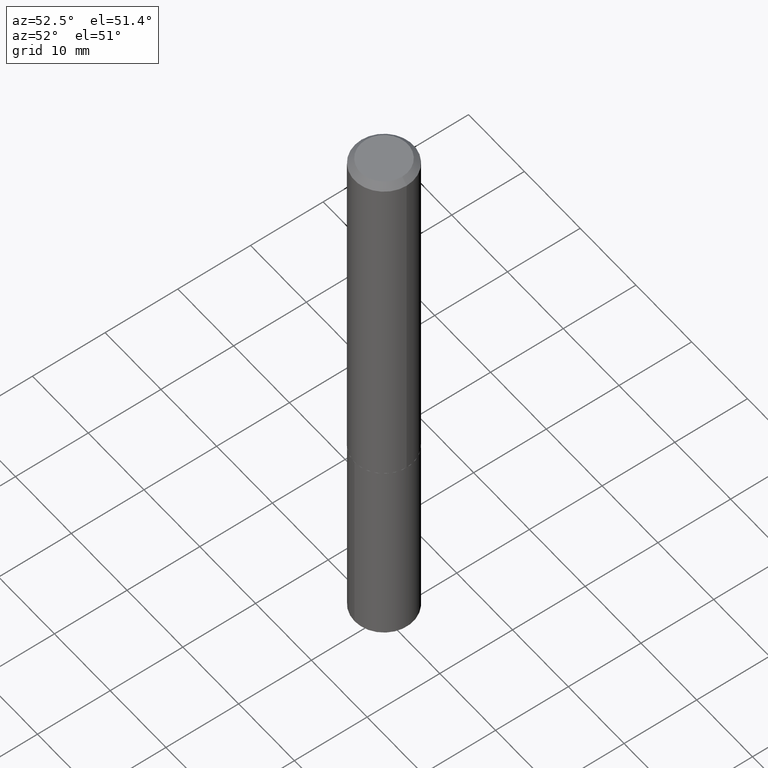
[diagram: clean part render]
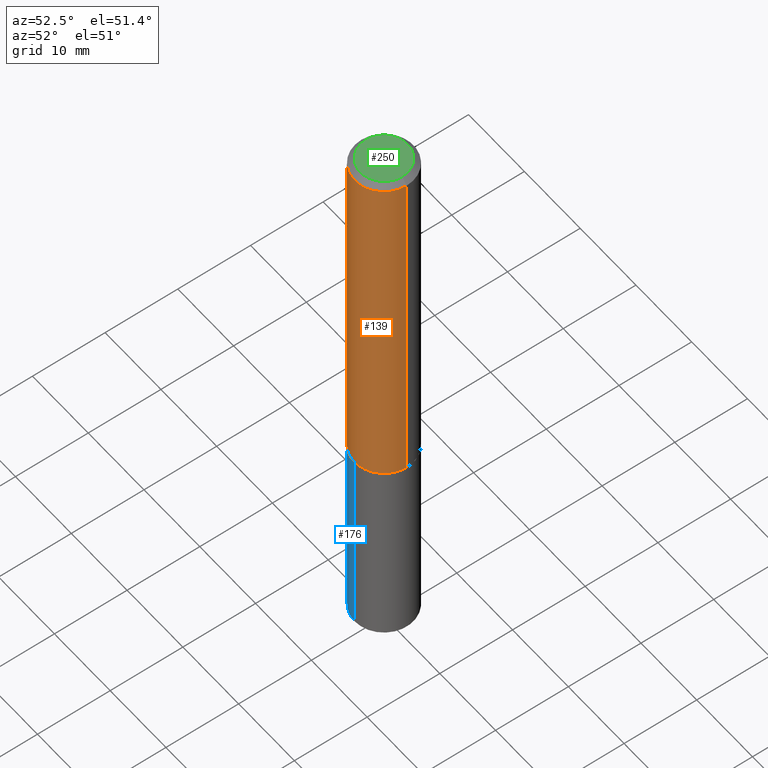
[diagram: same view with three faces highlighted in distinct colors, each labeled with its STEP entity id]
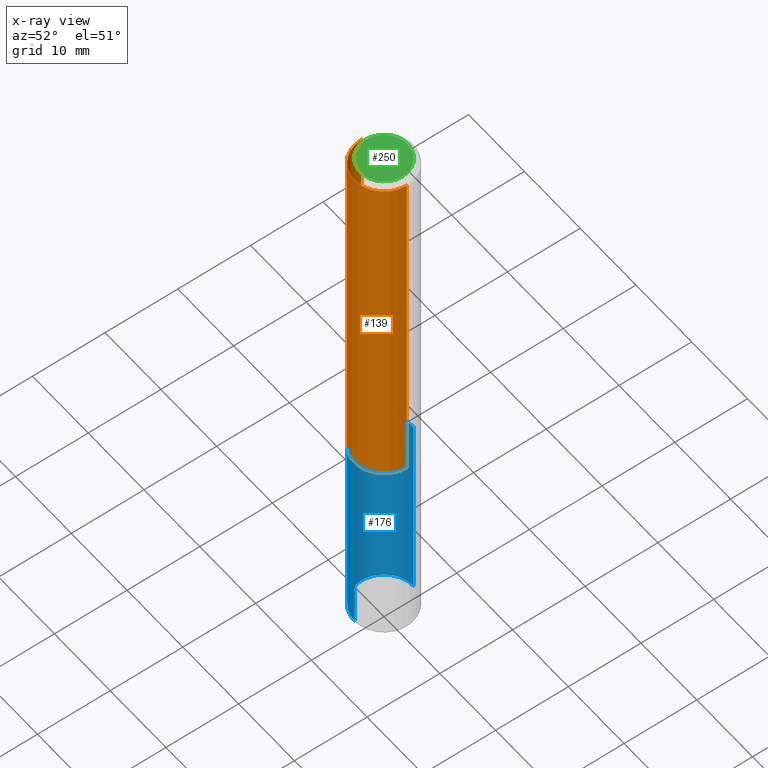
[diagram: x-ray of the same camera — body ghosted, the three highlighted faces saturated]
A machine part, auxiliary view with three faces highlighted in distinct colors.
The next image is the same camera in x-ray (body ghosted, the three faces saturated) — at least one of them is partly hidden behind the body in this view.
Their STEP definitions:

[orange] entity #139 — the highlighted cylindrical surface (partial cylindrical patch) has radius 4.05 mm, axis along (-0, 0, 1).
#24 = CARTESIAN_POINT ( 'NONE',  ( 4.822219938916470979E-29, -6.884852052064798720E-15, -1.971899999999999986 ) ) ;
#25 = EDGE_CURVE ( 'NONE', #80, #200, #130, .T. ) ;
#38 = CARTESIAN_POINT ( 'NONE',  ( -0.1594500000000002582, -5.751891659895316745E-15, -1.971899999999999986 ) ) ;
#51 = AXIS2_PLACEMENT_3D ( 'NONE', #380, #164, #261 ) ;
#52 = VERTEX_POINT ( 'NONE', #38 ) ;
#58 = CARTESIAN_POINT ( 'NONE',  ( 0.1594500000000001194, -1.113433398957076194E-15, 7.775063869006624280E-30 ) ) ;
#77 = ORIENTED_EDGE ( 'NONE', *, *, #367, .F. ) ;
#80 = VERTEX_POINT ( 'NONE', #368 ) ;
#83 = CIRCLE ( 'NONE', #51, 0.1594500000000000361 ) ;
#93 = CARTESIAN_POINT ( 'NONE',  ( 0.000000000000000000, 0.000000000000000000, 0.000000000000000000 ) ) ;
#114 = ORIENTED_EDGE ( 'NONE', *, *, #25, .T. ) ;
#130 = LINE ( 'NONE', #58, #327 ) ;
#137 = CARTESIAN_POINT ( 'NONE',  ( -0.1594500000000000361, -2.364020029782342724E-15, -0.03125000000000021511 ) ) ;
#139 = ADVANCED_FACE ( 'NONE', ( #184 ), #366, .T. ) ;
#142 = CARTESIAN_POINT ( 'NONE',  ( 0.1594500000000000361, -1.222542190795924506E-15, -0.03125000000000021511 ) ) ;
#149 = EDGE_CURVE ( 'NONE', #52, #80, #286, .T. ) ;
#164 = DIRECTION ( 'NONE',  ( -2.445468806185136597E-29, 3.491481338843145583E-15, 1.000000000000000000 ) ) ;
#172 = LINE ( 'NONE', #329, #230 ) ;
#178 = EDGE_LOOP ( 'NONE', ( #77, #205, #114, #301 ) ) ;
#184 = FACE_OUTER_BOUND ( 'NONE', #178, .T. ) ;
#189 = DIRECTION ( 'NONE',  ( 1.000000000000000000, -6.982962677686267499E-15, 0.000000000000000000 ) ) ;
#197 = DIRECTION ( 'NONE',  ( -2.445468806185136597E-29, 3.491481338843145583E-15, 1.000000000000000000 ) ) ;
#200 = VERTEX_POINT ( 'NONE', #142 ) ;
#205 = ORIENTED_EDGE ( 'NONE', *, *, #149, .T. ) ;
#230 = VECTOR ( 'NONE', #365, 39.37007874015748143 ) ;
#233 = EDGE_CURVE ( 'NONE', #328, #200, #83, .T. ) ;
#240 = AXIS2_PLACEMENT_3D ( 'NONE', #93, #310, #307 ) ;
#261 = DIRECTION ( 'NONE',  ( 1.000000000000000000, -6.982962677686265922E-15, 0.000000000000000000 ) ) ;
#286 = CIRCLE ( 'NONE', #372, 0.1594500000000002582 ) ;
#301 = ORIENTED_EDGE ( 'NONE', *, *, #233, .F. ) ;
#307 = DIRECTION ( 'NONE',  ( 1.000000000000000000, -6.982962677686267499E-15, 4.876176775795935232E-29 ) ) ;
#310 = DIRECTION ( 'NONE',  ( -2.445468806185136597E-29, 3.491481338843145583E-15, 1.000000000000000000 ) ) ;
#327 = VECTOR ( 'NONE', #343, 39.37007874015748143 ) ;
#328 = VERTEX_POINT ( 'NONE', #137 ) ;
#329 = CARTESIAN_POINT ( 'NONE',  ( -0.1594500000000001194, 1.132960392169480595E-15, -7.843242001411453542E-30 ) ) ;
#343 = DIRECTION ( 'NONE',  ( -2.445468806185136877E-29, 3.491481338843145188E-15, 1.000000000000000000 ) ) ;
#365 = DIRECTION ( 'NONE',  ( -2.445468806185136877E-29, 3.491481338843145188E-15, 1.000000000000000000 ) ) ;
#366 = CYLINDRICAL_SURFACE ( 'NONE', #240, 0.1594500000000001194 ) ;
#367 = EDGE_CURVE ( 'NONE', #52, #328, #172, .T. ) ;
#368 = CARTESIAN_POINT ( 'NONE',  ( 0.1594500000000002582, -7.998285451021876295E-15, -1.971899999999999986 ) ) ;
#372 = AXIS2_PLACEMENT_3D ( 'NONE', #24, #197, #189 ) ;
#380 = CARTESIAN_POINT ( 'NONE',  ( 7.642090019328603538E-31, -1.091087918388490390E-16, -0.03125000000000021511 ) ) ;

[blue] entity #176 — the highlighted cylindrical surface (partial cylindrical patch) has radius 4.05 mm, axis along (-0, 0, 1).
#6 = DIRECTION ( 'NONE',  ( -2.445414738655623976E-29, 3.491558766622740629E-15, 1.000000000000000000 ) ) ;
#13 = DIRECTION ( 'NONE',  ( -2.445414738655623695E-29, 3.491558766622740629E-15, 1.000000000000000000 ) ) ;
#22 = DIRECTION ( 'NONE',  ( -6.982962677686265133E-15, -1.000000000000000000, 3.426588891394496771E-15 ) ) ;
#30 = ORIENTED_EDGE ( 'NONE', *, *, #218, .T. ) ;
#48 = CYLINDRICAL_SURFACE ( 'NONE', #98, 0.1594500000000000361 ) ;
#54 = ORIENTED_EDGE ( 'NONE', *, *, #100, .T. ) ;
#67 = EDGE_CURVE ( 'NONE', #148, #117, #215, .T. ) ;
#74 = AXIS2_PLACEMENT_3D ( 'NONE', #242, #132, #96 ) ;
#75 = DIRECTION ( 'NONE',  ( -2.445414738655623695E-29, 3.491558766622740629E-15, 1.000000000000000000 ) ) ;
#81 = CARTESIAN_POINT ( 'NONE',  ( 4.823442673319563780E-29, -6.886597792734220224E-15, -1.972399999999999931 ) ) ;
#96 = DIRECTION ( 'NONE',  ( -6.982962677686265133E-15, -1.000000000000000000, 3.426588891394496771E-15 ) ) ;
#98 = AXIS2_PLACEMENT_3D ( 'NONE', #160, #13, #320 ) ;
#100 = EDGE_CURVE ( 'NONE', #148, #232, #371, .T. ) ;
#103 = CARTESIAN_POINT ( 'NONE',  ( 1.132960392169554156E-15, 0.1594499999999892392, -3.067475501266858195 ) ) ;
#105 = CIRCLE ( 'NONE', #166, 0.1594500000000000361 ) ;
#117 = VERTEX_POINT ( 'NONE', #336 ) ;
#132 = DIRECTION ( 'NONE',  ( -2.445414738655623695E-29, 3.491558766622740629E-15, 1.000000000000000000 ) ) ;
#146 = EDGE_LOOP ( 'NONE', ( #330, #54, #30, #386 ) ) ;
#148 = VERTEX_POINT ( 'NONE', #103 ) ;
#160 = CARTESIAN_POINT ( 'NONE',  ( 4.823442673319563780E-29, -6.886597792734220224E-15, -1.972399999999999931 ) ) ;
#166 = AXIS2_PLACEMENT_3D ( 'NONE', #81, #75, #22 ) ;
#176 = ADVANCED_FACE ( 'NONE', ( #378 ), #48, .T. ) ;
#199 = LINE ( 'NONE', #354, #284 ) ;
#215 = LINE ( 'NONE', #370, #220 ) ;
#218 = EDGE_CURVE ( 'NONE', #232, #297, #199, .T. ) ;
#220 = VECTOR ( 'NONE', #6, 39.37007874015748143 ) ;
#232 = VERTEX_POINT ( 'NONE', #289 ) ;
#242 = CARTESIAN_POINT ( 'NONE',  ( 7.501356444058232393E-29, -1.071011825929630935E-14, -3.067475501266857751 ) ) ;
#284 = VECTOR ( 'NONE', #322, 39.37007874015748143 ) ;
#287 = EDGE_CURVE ( 'NONE', #117, #297, #105, .T. ) ;
#289 = CARTESIAN_POINT ( 'NONE',  ( -1.113433398956999872E-15, -0.1594500000000106665, -3.067475501266857307 ) ) ;
#297 = VERTEX_POINT ( 'NONE', #325 ) ;
#320 = DIRECTION ( 'NONE',  ( -6.982962677686265133E-15, -1.000000000000000000, 3.426588891394496771E-15 ) ) ;
#322 = DIRECTION ( 'NONE',  ( -2.445414738655623976E-29, 3.491558766622740629E-15, 1.000000000000000000 ) ) ;
#325 = CARTESIAN_POINT ( 'NONE',  ( -1.113433398957026890E-15, -0.1594500000000069195, -1.972399999999999487 ) ) ;
#330 = ORIENTED_EDGE ( 'NONE', *, *, #67, .F. ) ;
#336 = CARTESIAN_POINT ( 'NONE',  ( 1.132960392169554945E-15, 0.1594499999999931250, -1.972400000000000597 ) ) ;
#354 = CARTESIAN_POINT ( 'NONE',  ( -1.113433398957026890E-15, -0.1594500000000069195, -1.972399999999999487 ) ) ;
#370 = CARTESIAN_POINT ( 'NONE',  ( 1.132960392169527927E-15, 0.1594499999999931250, -1.972400000000000597 ) ) ;
#371 = CIRCLE ( 'NONE', #74, 0.1594500000000000361 ) ;
#378 = FACE_OUTER_BOUND ( 'NONE', #146, .T. ) ;
#386 = ORIENTED_EDGE ( 'NONE', *, *, #287, .F. ) ;

[green] entity #250 — the highlighted planar face has unit normal (0, -0, -1).
#10 = EDGE_CURVE ( 'NONE', #47, #109, #70, .T. ) ;
#11 = CARTESIAN_POINT ( 'NONE',  ( -0.1282000000000000084, 9.497702111988029376E-16, 2.388061258272874228E-19 ) ) ;
#39 = DIRECTION ( 'NONE',  ( -2.445468806185136597E-29, 3.491481338843145583E-15, 1.000000000000000000 ) ) ;
#41 = FACE_OUTER_BOUND ( 'NONE', #82, .T. ) ;
#47 = VERTEX_POINT ( 'NONE', #11 ) ;
#62 = CARTESIAN_POINT ( 'NONE',  ( -5.839929314523303030E-48, 8.337871319499265500E-34, 2.388061258337386622E-19 ) ) ;
#63 = AXIS2_PLACEMENT_3D ( 'NONE', #110, #280, #201 ) ;
#69 = PLANE ( 'NONE',  #63 ) ;
#70 = CIRCLE ( 'NONE', #90, 0.1282000000000000084 ) ;
#78 = EDGE_CURVE ( 'NONE', #109, #47, #267, .T. ) ;
#82 = EDGE_LOOP ( 'NONE', ( #290, #229 ) ) ;
#90 = AXIS2_PLACEMENT_3D ( 'NONE', #324, #39, #311 ) ;
#109 = VERTEX_POINT ( 'NONE', #185 ) ;
#110 = CARTESIAN_POINT ( 'NONE',  ( -2.919964657261651515E-48, 4.168935659749632750E-34, 1.194030629168693311E-19 ) ) ;
#158 = DIRECTION ( 'NONE',  ( -2.445468806185136597E-29, 3.491481338843145583E-15, 1.000000000000000000 ) ) ;
#185 = CARTESIAN_POINT ( 'NONE',  ( 0.1282000000000000084, -1.041265520448915177E-15, 2.388061258405092689E-19 ) ) ;
#201 = DIRECTION ( 'NONE',  ( -1.000000000000000000, 6.982962677686265922E-15, -4.876176775795935793E-29 ) ) ;
#229 = ORIENTED_EDGE ( 'NONE', *, *, #78, .T. ) ;
#250 = ADVANCED_FACE ( 'NONE', ( #41 ), #69, .F. ) ;
#267 = CIRCLE ( 'NONE', #350, 0.1282000000000000084 ) ;
#279 = DIRECTION ( 'NONE',  ( 1.000000000000000000, -6.982962677686267499E-15, 4.876166643192836620E-29 ) ) ;
#280 = DIRECTION ( 'NONE',  ( 2.438088387897960049E-29, -3.491481338843145188E-15, -1.000000000000000000 ) ) ;
#290 = ORIENTED_EDGE ( 'NONE', *, *, #10, .T. ) ;
#311 = DIRECTION ( 'NONE',  ( 1.000000000000000000, -6.982962677686267499E-15, 4.876166643192836620E-29 ) ) ;
#324 = CARTESIAN_POINT ( 'NONE',  ( -5.839929314523303030E-48, 8.337871319499265500E-34, 2.388061258337386622E-19 ) ) ;
#350 = AXIS2_PLACEMENT_3D ( 'NONE', #62, #158, #279 ) ;